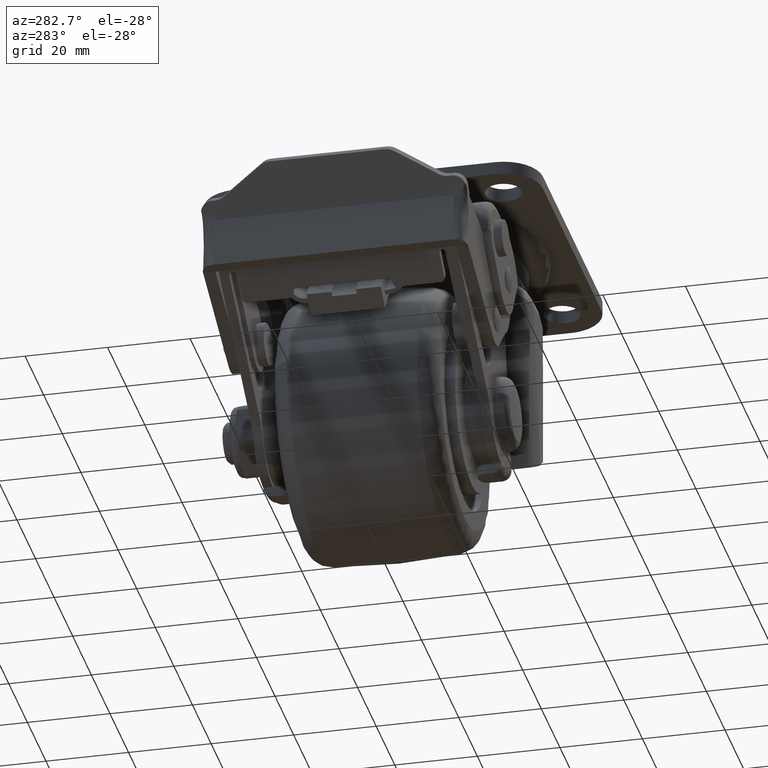
[diagram: clean part render]
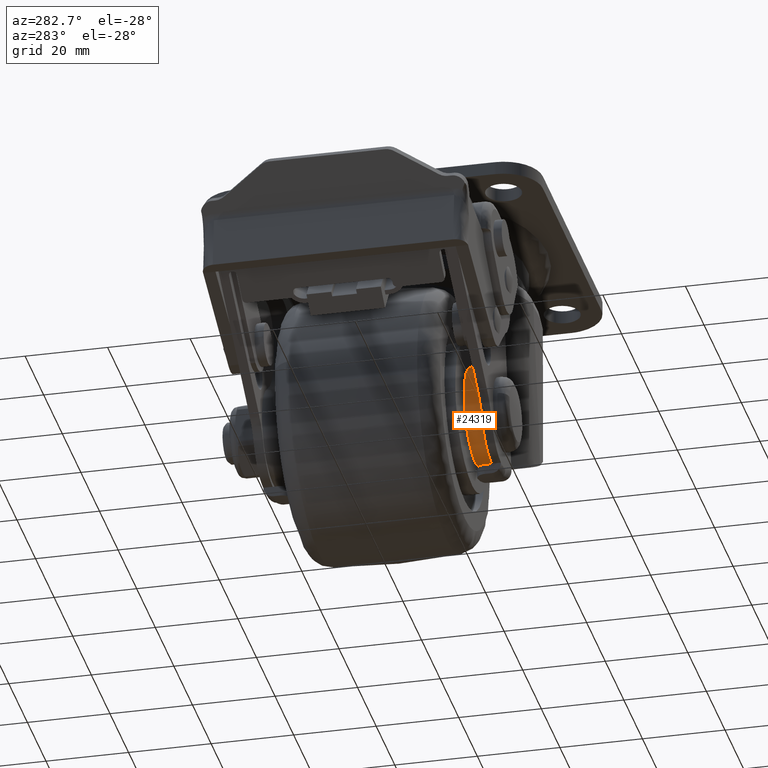
[diagram: same view with one face highlighted and labeled with its STEP entity id]
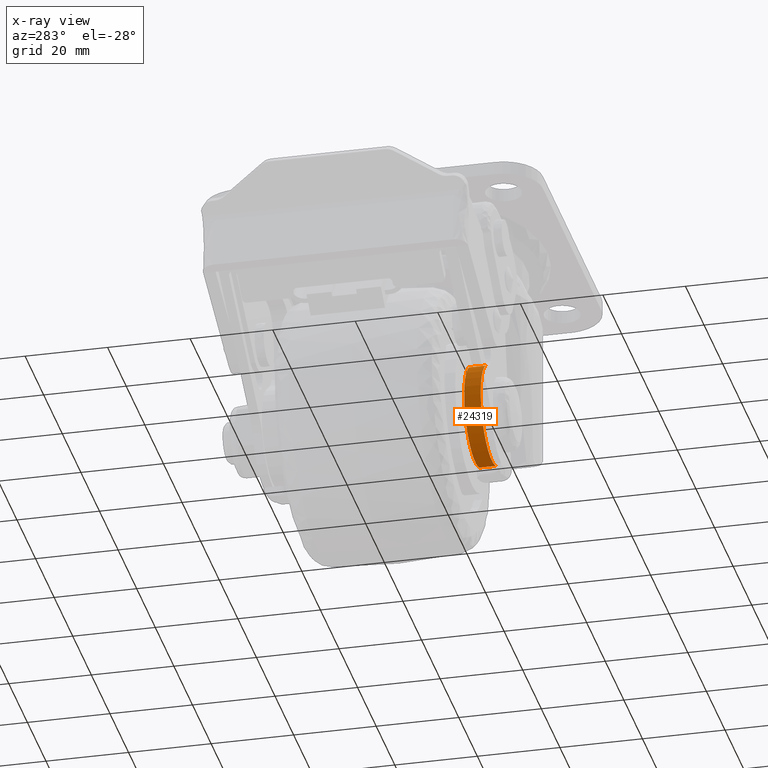
[diagram: x-ray of the same camera — body ghosted, the highlighted face saturated]
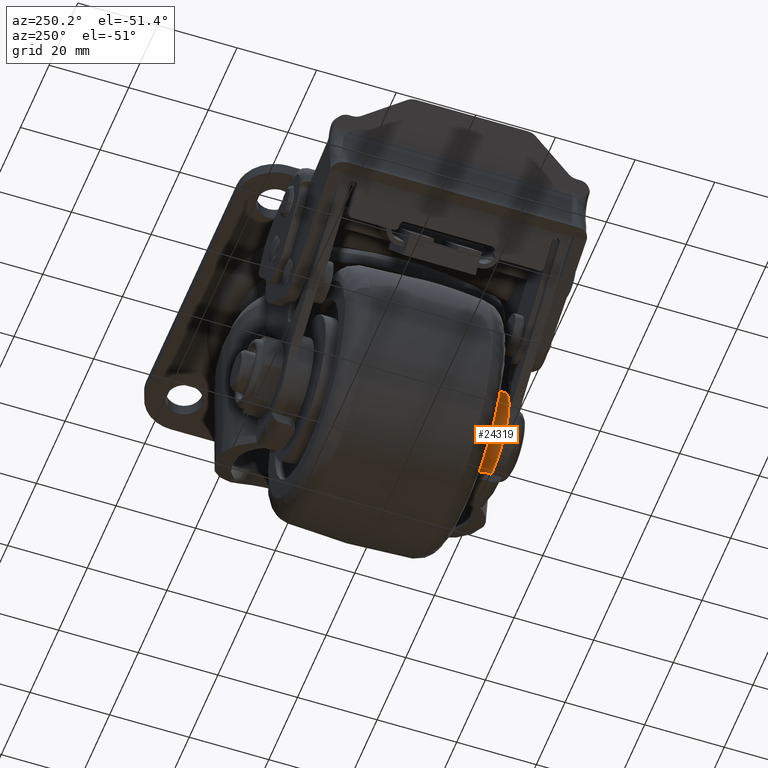
[diagram: same view with one face highlighted and labeled with its STEP entity id]
A machine part, auxiliary view. The second image highlights one B-rep face of the part: STEP entity #24319.
The next image is the same camera in x-ray: the body ghosted, the highlighted face saturated — about 0% of this face is hidden behind the body in this view.
A second angle (auxiliary view) of the same face is appended — the face is thin or edge-on in the first view.
In plain terms, the highlighted face is a freeform B-spline surface patch.
Its self-contained STEP definition (entity closure, byte-faithful):
#23640=CARTESIAN_POINT('',(-20.257998655702401,-22.500000000000000,-69.372884939165388));
#23641=VERTEX_POINT('',#23640);
#23655=CARTESIAN_POINT('',(-26.150050277425350,-22.500000000000000,-46.240467030340703));
#23656=VERTEX_POINT('',#23655);
#23657=CARTESIAN_POINT('',(-20.257998655702401,-22.500000000000000,-69.372884939165388));
#23658=CARTESIAN_POINT('',(-30.959092917832034,-22.499999999999989,-70.942960072187006));
#23659=CARTESIAN_POINT('',(-33.628709435673791,-22.500000000000000,-60.461944474947792));
#23660=CARTESIAN_POINT('',(-36.298325953515551,-22.499999999999989,-49.980928877708578));
#23661=CARTESIAN_POINT('',(-26.150050277425350,-22.500000000000000,-46.240467030340703));
#23669=(BOUNDED_CURVE()B_SPLINE_CURVE(2,(#23657,#23658,#23659,#23660,#23661),.UNSPECIFIED.,.F.,.U.)B_SPLINE_CURVE_WITH_KNOTS((3,2,3),(0.0,0.500000000000000,1.0),.UNSPECIFIED.)CURVE()GEOMETRIC_REPRESENTATION_ITEM()RATIONAL_B_SPLINE_CURVE((1.0,0.742811870764269,1.0,0.742811870764269,1.0))REPRESENTATION_ITEM(''));
#23670=EDGE_CURVE('',#23641,#23656,#23669,.T.);
#24231=CARTESIAN_POINT('',(-26.150050052318850,-26.500000000000000,-46.240467641078901));
#24232=VERTEX_POINT('',#24231);
#24246=CARTESIAN_POINT('',(-20.257998446795650,-26.500000000000000,-69.372886362996709));
#24247=VERTEX_POINT('',#24246);
#24248=CARTESIAN_POINT('',(-20.257998446795650,-26.500000000000000,-69.372886362996695));
#24249=CARTESIAN_POINT('',(-30.959092718725767,-26.500000000000000,-70.942961429223956));
#24250=CARTESIAN_POINT('',(-33.628709331220712,-26.500000000000000,-60.461945186863922));
#24251=CARTESIAN_POINT('',(-36.298325943715625,-26.500000000000000,-49.980928944503873));
#24252=CARTESIAN_POINT('',(-26.150050052318850,-26.500000000000000,-46.240467641078901));
#24260=(BOUNDED_CURVE()B_SPLINE_CURVE(2,(#24248,#24249,#24250,#24251,#24252),.UNSPECIFIED.,.F.,.U.)B_SPLINE_CURVE_WITH_KNOTS((3,2,3),(0.0,0.500000000000000,1.0),.UNSPECIFIED.)CURVE()GEOMETRIC_REPRESENTATION_ITEM()RATIONAL_B_SPLINE_CURVE((1.0,0.742811870764258,1.0,0.742811870764258,1.0))REPRESENTATION_ITEM(''));
#24261=EDGE_CURVE('',#24247,#24232,#24260,.T.);
#24287=CARTESIAN_POINT('',(-19.741768416867011,-22.399999999999991,-69.285600965455245));
#24288=CARTESIAN_POINT('',(-19.741768416867011,-26.602499999999999,-69.285600965455245));
#24289=CARTESIAN_POINT('',(-30.925886130524709,-22.399999999999984,-71.428582721285139));
#24290=CARTESIAN_POINT('',(-30.925886130524709,-26.602499999999999,-71.428582721285139));
#24291=CARTESIAN_POINT('',(-33.651262499614582,-22.399999999999991,-60.371947451657313));
#24292=CARTESIAN_POINT('',(-33.651262499614582,-26.602499999999999,-60.371947451657313));
#24293=CARTESIAN_POINT('',(-36.376638868704454,-22.399999999999984,-49.315312182029466));
#24294=CARTESIAN_POINT('',(-36.376638868704454,-26.602499999999999,-49.315312182029466));
#24295=CARTESIAN_POINT('',(-25.477791511843250,-22.399999999999991,-46.015011266868697));
#24296=CARTESIAN_POINT('',(-25.477791511843250,-26.602499999999999,-46.015011266868697));
#24304=(BOUNDED_SURFACE()B_SPLINE_SURFACE(1,2,((#24287,#24289,#24291,#24293,#24295),(#24288,#24290,#24292,#24294,#24296)),.UNSPECIFIED.,.F.,.F.,.U.)B_SPLINE_SURFACE_WITH_KNOTS((2,2),(3,2,3),(0.0,4.202500000000017),(0.0,19.150058206738539,38.300116413477092),.UNSPECIFIED.)GEOMETRIC_REPRESENTATION_ITEM()RATIONAL_B_SPLINE_SURFACE(((1.0,0.725374371012288,1.0,0.725374371012288,1.0),(1.0,0.725374371012288,1.0,0.725374371012288,1.0)))REPRESENTATION_ITEM('')SURFACE());
#24305=ORIENTED_EDGE('',*,*,#23670,.F.);
#24306=CARTESIAN_POINT('',(-20.257998655702401,-22.500000000000000,-69.372884939165388));
#24307=CARTESIAN_POINT('',(-20.257998446795650,-26.500000000000000,-69.372886362996709));
#24308=QUASI_UNIFORM_CURVE('',1,(#24306,#24307),.UNSPECIFIED.,.F.,.U.);
#24309=EDGE_CURVE('',#23641,#24247,#24308,.T.);
#24310=ORIENTED_EDGE('',*,*,#24309,.T.);
#24311=ORIENTED_EDGE('',*,*,#24261,.T.);
#24312=CARTESIAN_POINT('',(-26.150050277425350,-22.500000000000000,-46.240467030340703));
#24313=CARTESIAN_POINT('',(-26.150050052318850,-26.500000000000000,-46.240467641078901));
#24314=QUASI_UNIFORM_CURVE('',1,(#24312,#24313),.UNSPECIFIED.,.F.,.U.);
#24315=EDGE_CURVE('',#23656,#24232,#24314,.T.);
#24316=ORIENTED_EDGE('',*,*,#24315,.F.);
#24317=EDGE_LOOP('',(#24305,#24310,#24311,#24316));
#24318=FACE_OUTER_BOUND('',#24317,.T.);
#24319=ADVANCED_FACE('',(#24318),#24304,.T.);